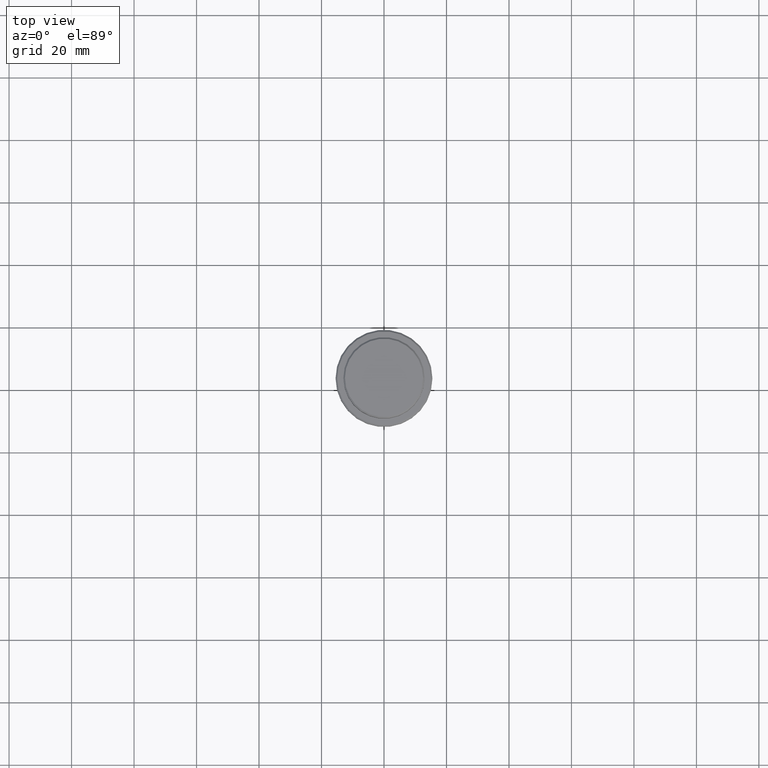
[diagram: clean part render]
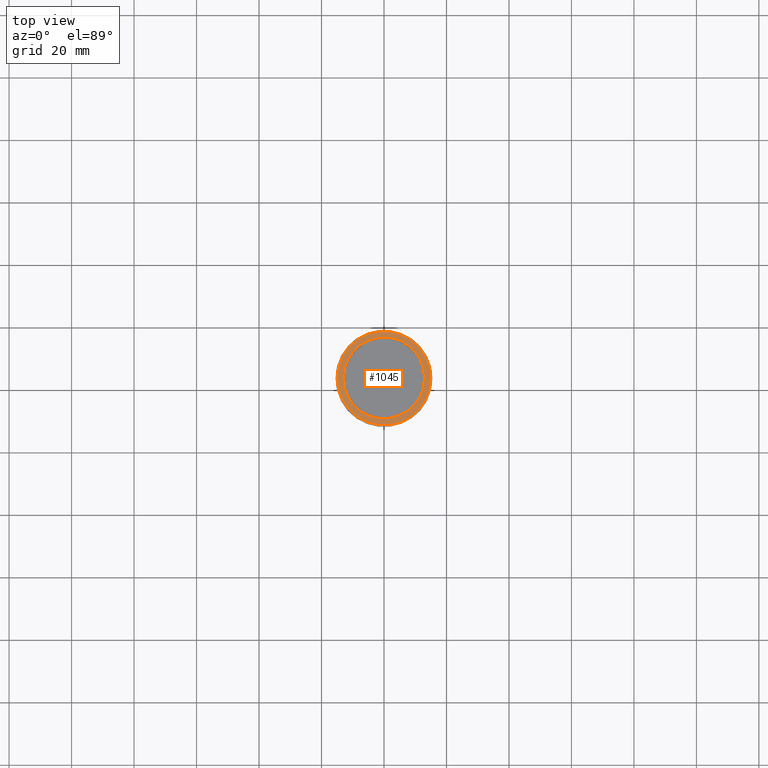
[diagram: same view with one face highlighted and labeled with its STEP entity id]
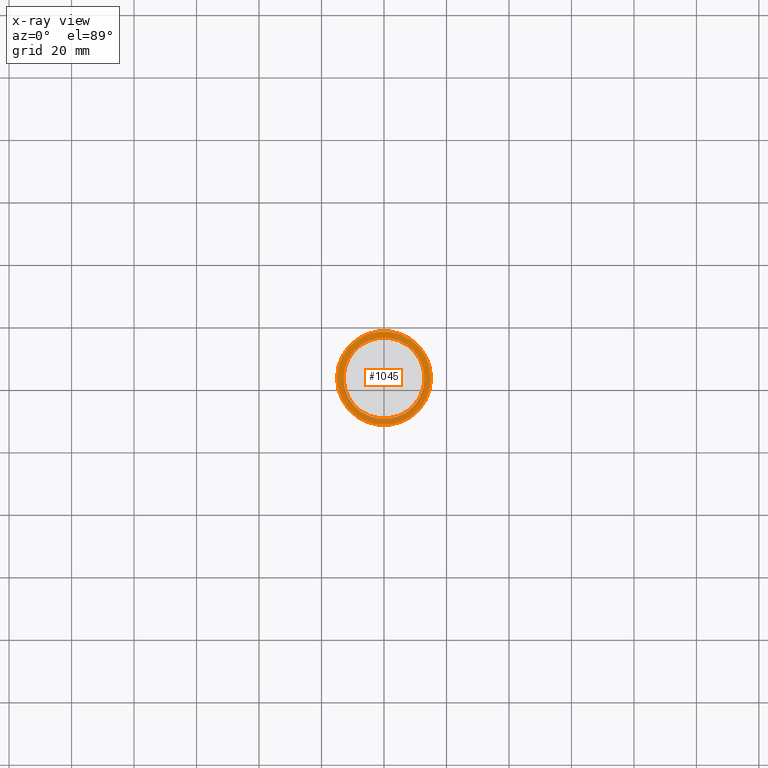
[diagram: x-ray of the same camera — body ghosted, the highlighted face saturated]
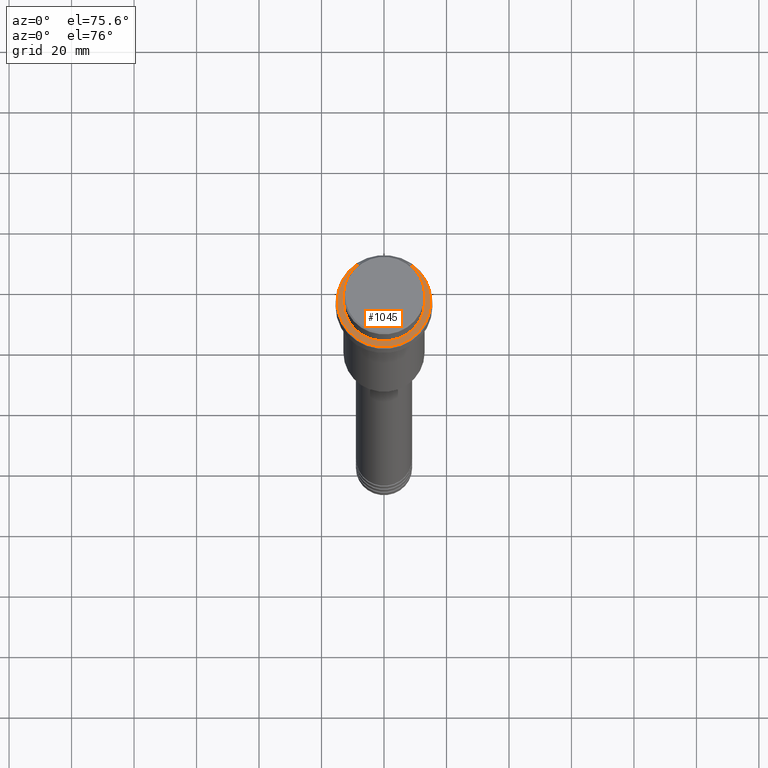
[diagram: same view with one face highlighted and labeled with its STEP entity id]
A machine part, top view. The second image highlights one B-rep face of the part: STEP entity #1045.
The next image is the same camera in x-ray: the body ghosted, the highlighted face saturated — about 0% of this face is hidden behind the body in this view.
A second angle (auxiliary view) of the same face is appended — the face is thin or edge-on in the first view.
In plain terms, the highlighted planar face has unit normal (0, -0, 1).
Its self-contained STEP definition (entity closure, byte-faithful):
#21 = CARTESIAN_POINT ( 'NONE',  ( 0.000000000000000000, 0.000000000000000000, -9.000000000000001776 ) ) ;
#72 = PLANE ( 'NONE',  #858 ) ;
#83 = ORIENTED_EDGE ( 'NONE', *, *, #1202, .T. ) ;
#96 = VERTEX_POINT ( 'NONE', #470 ) ;
#116 = CARTESIAN_POINT ( 'NONE',  ( 0.000000000000000000, 0.000000000000000000, -9.000000000000001776 ) ) ;
#144 = EDGE_LOOP ( 'NONE', ( #580, #83 ) ) ;
#218 = CARTESIAN_POINT ( 'NONE',  ( 15.00000000000006928, 1.867586368699718109E-15, -9.000000000000001776 ) ) ;
#260 = DIRECTION ( 'NONE',  ( 1.000000000000000000, 0.000000000000000000, 0.000000000000000000 ) ) ;
#288 = DIRECTION ( 'NONE',  ( 1.000000000000000000, 0.000000000000000000, 0.000000000000000000 ) ) ;
#292 = DIRECTION ( 'NONE',  ( 1.000000000000000000, 0.000000000000000000, 0.000000000000000000 ) ) ;
#352 = VERTEX_POINT ( 'NONE', #218 ) ;
#378 = CARTESIAN_POINT ( 'NONE',  ( 0.000000000000000000, 0.000000000000000000, -9.000000000000001776 ) ) ;
#453 = DIRECTION ( 'NONE',  ( -0.000000000000000000, -0.000000000000000000, 1.000000000000000000 ) ) ;
#470 = CARTESIAN_POINT ( 'NONE',  ( 12.99999999999999467, 0.000000000000000000, -9.000000000000001776 ) ) ;
#504 = CARTESIAN_POINT ( 'NONE',  ( 0.000000000000000000, 12.49999999999999289, -9.000000000000001776 ) ) ;
#516 = CIRCLE ( 'NONE', #1127, 12.99999999999999467 ) ;
#529 = EDGE_CURVE ( 'NONE', #96, #1255, #516, .T. ) ;
#545 = DIRECTION ( 'NONE',  ( 1.000000000000000000, 0.000000000000000000, 0.000000000000000000 ) ) ;
#562 = CIRCLE ( 'NONE', #927, 15.00000000000006928 ) ;
#580 = ORIENTED_EDGE ( 'NONE', *, *, #842, .T. ) ;
#582 = DIRECTION ( 'NONE',  ( 1.000000000000000000, 0.000000000000000000, 0.000000000000000000 ) ) ;
#623 = FACE_OUTER_BOUND ( 'NONE', #144, .T. ) ;
#624 = EDGE_CURVE ( 'NONE', #1255, #96, #953, .T. ) ;
#698 = DIRECTION ( 'NONE',  ( -0.000000000000000000, -0.000000000000000000, 1.000000000000000000 ) ) ;
#726 = DIRECTION ( 'NONE',  ( 0.000000000000000000, -0.000000000000000000, 1.000000000000000000 ) ) ;
#768 = ORIENTED_EDGE ( 'NONE', *, *, #529, .T. ) ;
#834 = FACE_BOUND ( 'NONE', #1222, .T. ) ;
#842 = EDGE_CURVE ( 'NONE', #941, #352, #562, .T. ) ;
#858 = AXIS2_PLACEMENT_3D ( 'NONE', #504, #726, #292 ) ;
#919 = ORIENTED_EDGE ( 'NONE', *, *, #624, .T. ) ;
#924 = AXIS2_PLACEMENT_3D ( 'NONE', #378, #1260, #288 ) ;
#927 = AXIS2_PLACEMENT_3D ( 'NONE', #1334, #698, #260 ) ;
#941 = VERTEX_POINT ( 'NONE', #1028 ) ;
#953 = CIRCLE ( 'NONE', #924, 12.99999999999999467 ) ;
#977 = CARTESIAN_POINT ( 'NONE',  ( -12.99999999999999467, 1.592040838891558504E-15, -9.000000000000001776 ) ) ;
#1028 = CARTESIAN_POINT ( 'NONE',  ( -15.00000000000006928, 0.000000000000000000, -9.000000000000001776 ) ) ;
#1045 = ADVANCED_FACE ( 'NONE', ( #623, #834 ), #72, .T. ) ;
#1088 = AXIS2_PLACEMENT_3D ( 'NONE', #116, #453, #545 ) ;
#1103 = CIRCLE ( 'NONE', #1088, 15.00000000000006928 ) ;
#1127 = AXIS2_PLACEMENT_3D ( 'NONE', #21, #1314, #582 ) ;
#1202 = EDGE_CURVE ( 'NONE', #352, #941, #1103, .T. ) ;
#1222 = EDGE_LOOP ( 'NONE', ( #768, #919 ) ) ;
#1255 = VERTEX_POINT ( 'NONE', #977 ) ;
#1260 = DIRECTION ( 'NONE',  ( 0.000000000000000000, 0.000000000000000000, -1.000000000000000000 ) ) ;
#1314 = DIRECTION ( 'NONE',  ( 0.000000000000000000, 0.000000000000000000, -1.000000000000000000 ) ) ;
#1334 = CARTESIAN_POINT ( 'NONE',  ( 0.000000000000000000, 0.000000000000000000, -9.000000000000001776 ) ) ;